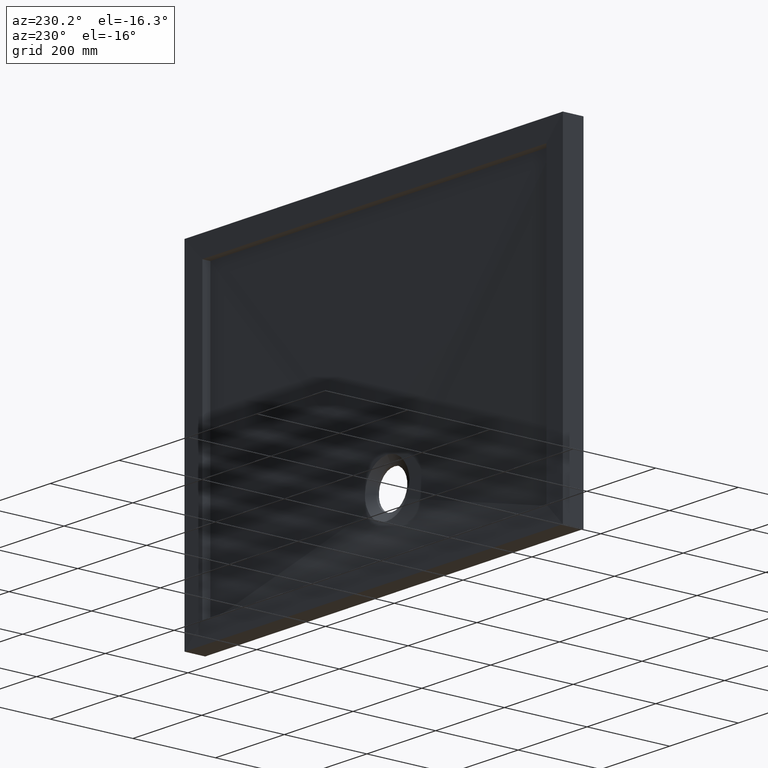
[diagram: clean part render]
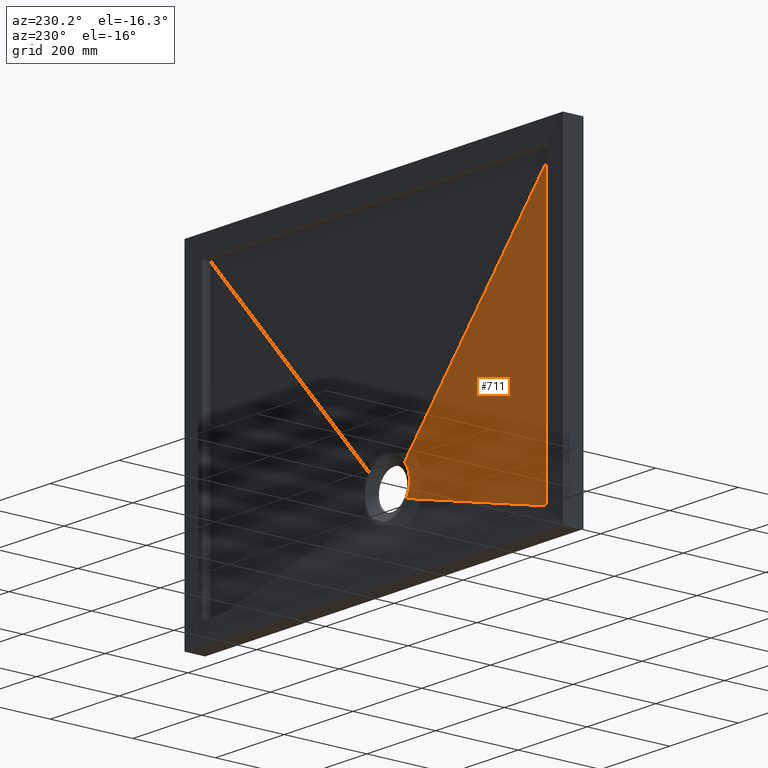
[diagram: same view with one face highlighted and labeled with its STEP entity id]
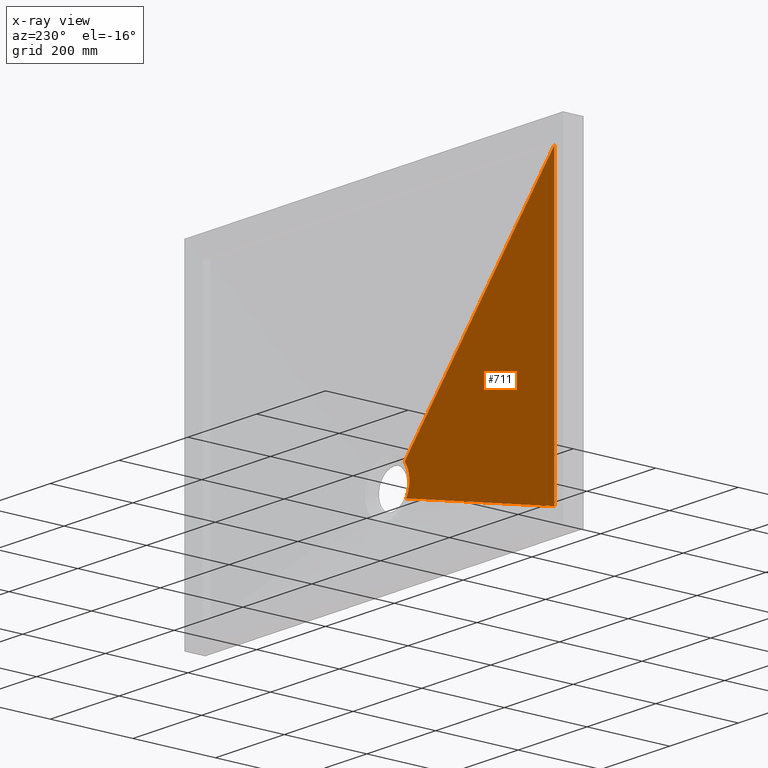
[diagram: x-ray of the same camera — body ghosted, the highlighted face saturated]
A machine part, auxiliary view. The second image highlights one B-rep face of the part: STEP entity #711.
The next image is the same camera in x-ray: the body ghosted, the highlighted face saturated — about 0% of this face is hidden behind the body in this view.
In plain terms, the highlighted face is a freeform B-spline surface patch.
Its self-contained STEP definition (entity closure, byte-faithful):
#8 = CARTESIAN_POINT ( 'NONE',  ( -59.21531781090852300, 17.29261846597233200, -174.2304335301227000 ) ) ;
#33 = CARTESIAN_POINT ( 'NONE',  ( -500.0000000000000000, 29.00000000000000000, -350.0000000000000000 ) ) ;
#35 = ORIENTED_EDGE ( 'NONE', *, *, #267, .T. ) ;
#38 = CARTESIAN_POINT ( 'NONE',  ( -500.0000000000000000, 28.99999999999991500, 350.0000000000001100 ) ) ;
#49 = VERTEX_POINT ( 'NONE', #262 ) ;
#53 = CARTESIAN_POINT ( 'NONE',  ( -500.0000000000000000, 29.00000000000000000, -350.0000000000000000 ) ) ;
#62 = CARTESIAN_POINT ( 'NONE',  ( -59.84731307925768800, 17.29821603857981300, -175.7093295538596700 ) ) ;
#80 = B_SPLINE_CURVE_WITH_KNOTS ( 'NONE', 3,
 ( #807, #372, #257, #53 ),
 .UNSPECIFIED., .F., .F.,
 ( 4, 4 ),
 ( 0.0000000000000000000, 1.000000000000000000 ),
 .UNSPECIFIED. ) ;
#91 = CARTESIAN_POINT ( 'NONE',  ( -500.0000000000000000, 29.00000000000000400, -145.8333333333339700 ) ) ;
#97 = CARTESIAN_POINT ( 'NONE',  ( -61.19294182446859100, 17.38558382166834400, -221.3166409475669500 ) ) ;
#114 = B_SPLINE_CURVE_WITH_KNOTS ( 'NONE', 3,
 ( #782, #940, #258, #97, #981, #922, #351, #631, #944, #332, #741, #933, #173, #892, #859, #200, #819, #222, #396, #62, #8, #151, #1018, #313, #831, #854 ),
 .UNSPECIFIED., .F., .F.,
 ( 4, 2, 2, 2, 2, 2, 2, 2, 2, 2, 2, 2, 4 ),
 ( 0.0000000000000000000, 0.009600364245515942800, 0.01920072849103188600, 0.02400091061378985600, 0.02880109273654783400, 0.03840145698206368800, 0.04080154804344261800, 0.04320163910482154000, 0.04800182122757940000, 0.05760218547309518800, 0.06240236759585308200, 0.06720254971861097700, 0.07680291396412677900 ),
 .UNSPECIFIED. ) ;
#118 = VERTEX_POINT ( 'NONE', #38 ) ;
#151 = CARTESIAN_POINT ( 'NONE',  ( -57.83474190761932500, 17.28140073573933200, -171.3092577803479300 ) ) ;
#173 = CARTESIAN_POINT ( 'NONE',  ( -64.43437236591164200, 17.35896006955111700, -194.3761037133583000 ) ) ;
#193 = ORIENTED_EDGE ( 'NONE', *, *, #1037, .F. ) ;
#200 = CARTESIAN_POINT ( 'NONE',  ( -63.82288352168742300, 17.34564737359868400, -189.5572170711315000 ) ) ;
#213 = EDGE_LOOP ( 'NONE', ( #193, #35, #936, #837 ) ) ;
#222 = CARTESIAN_POINT ( 'NONE',  ( -62.49452280413208900, 17.32566654715793000, -183.2648572593388100 ) ) ;
#257 = CARTESIAN_POINT ( 'NONE',  ( -500.0000000000000000, 28.99999999999991500, -116.6666666666666400 ) ) ;
#258 = CARTESIAN_POINT ( 'NONE',  ( -58.77831363838173900, 17.37757322068365400, -227.2449882993596200 ) ) ;
#262 = CARTESIAN_POINT ( 'NONE',  ( -55.68490230141027600, 17.36412464260612900, -232.9106875675516300 ) ) ;
#267 = EDGE_CURVE ( 'NONE', #49, #960, #689, .T. ) ;
#268 = B_SPLINE_SURFACE_WITH_KNOTS ( 'NONE', 3, 1, ( 
 ( #776, #698 ),
 ( #675, #622 ),
 ( #662, #738 ),
 ( #531, #798 ),
 ( #788, #811 ),
 ( #812, #608 ),
 ( #604, #594 ),
 ( #486, #529 ),
 ( #503, #510 ),
 ( #528, #583 ),
 ( #576, #575 ),
 ( #572, #559 ),
 ( #91, #337 ),
 ( #978, #569 ),
 ( #571, #527 ),
 ( #753, #566 ),
 ( #562, #560 ),
 ( #556, #554 ) ),
 .UNSPECIFIED., .F., .F., .F.,
 ( 4, 2, 2, 2, 2, 2, 2, 2, 4 ),
 ( 2, 2 ),
 ( 0.0000000000000000000, 0.1250000000000000000, 0.2500000000000000000, 0.3750000000000000000, 0.5000000000000000000, 0.6250000000000000000, 0.7500000000000000000, 0.8750000000000000000, 1.000000000000000000 ),
 ( 0.0000000000000000000, 1.000000000000000000 ),
 .UNSPECIFIED. ) ;
#313 = CARTESIAN_POINT ( 'NONE',  ( -54.68778998315712400, 17.25918541154275600, -165.6466839498065700 ) ) ;
#322 = CARTESIAN_POINT ( 'NONE',  ( -270.8904139732355800, 23.00000000000000000, -289.6232897812648700 ) ) ;
#332 = CARTESIAN_POINT ( 'NONE',  ( -64.74042599346458400, 17.37681902708269600, -202.3902420093279500 ) ) ;
#337 = CARTESIAN_POINT ( 'NONE',  ( -49.33176274626610100, 17.00000000000000000, -213.1989581409061700 ) ) ;
#351 = CARTESIAN_POINT ( 'NONE',  ( -63.62858149040349800, 17.38698584293970500, -211.9604408566551700 ) ) ;
#372 = CARTESIAN_POINT ( 'NONE',  ( -500.0000000000000000, 28.99999999999991500, 116.6666666666667600 ) ) ;
#396 = CARTESIAN_POINT ( 'NONE',  ( -61.57207882330573800, 17.31483812696561800, -180.1997936726896500 ) ) ;
#403 = DIRECTION ( 'NONE',  ( 0.6604934469873172700, -0.01729722771818440300, -0.7506325415275287800 ) ) ;
#439 = LINE ( 'NONE', #871, #709 ) ;
#450 = DIRECTION ( 'NONE',  ( -0.9666765704192132900, 0.02531565580952043600, -0.2547460024681087500 ) ) ;
#486 = CARTESIAN_POINT ( 'NONE',  ( -500.0000000000000000, 29.00000000000000400, 58.33333333333261100 ) ) ;
#503 = CARTESIAN_POINT ( 'NONE',  ( -500.0000000000000000, 29.00000000000000400, 29.16666666666591800 ) ) ;
#510 = CARTESIAN_POINT ( 'NONE',  ( -51.00000000000018500, 17.00000000000000000, -197.3206110380376100 ) ) ;
#527 = CARTESIAN_POINT ( 'NONE',  ( -46.73704076797305600, 17.00000000000000400, -220.5691083685937000 ) ) ;
#528 = CARTESIAN_POINT ( 'NONE',  ( -500.0000000000000000, 29.00000000000000400, -29.16666666666741700 ) ) ;
#529 = CARTESIAN_POINT ( 'NONE',  ( -50.78756212604044200, 17.00000000000000400, -194.6414262102023300 ) ) ;
#531 = CARTESIAN_POINT ( 'NONE',  ( -500.0000000000000000, 29.00000000000000000, 233.3333333333329400 ) ) ;
#554 = CARTESIAN_POINT ( 'NONE',  ( -41.78082794647119200, 17.00000000000000000, -229.2465795625298000 ) ) ;
#556 = CARTESIAN_POINT ( 'NONE',  ( -500.0000000000000000, 29.00000000000000000, -350.0000000000000000 ) ) ;
#559 = CARTESIAN_POINT ( 'NONE',  ( -49.95335274167531700, 17.00000000000000400, -210.6185370759290300 ) ) ;
#560 = CARTESIAN_POINT ( 'NONE',  ( -43.17847895318260500, 17.00000000000000400, -227.2499352672278100 ) ) ;
#562 = CARTESIAN_POINT ( 'NONE',  ( -500.0000000000000000, 29.00000000000000400, -320.8333333333334800 ) ) ;
#566 = CARTESIAN_POINT ( 'NONE',  ( -44.46438235875852700, 17.00000000000000400, -225.1069293279813300 ) ) ;
#569 = CARTESIAN_POINT ( 'NONE',  ( -47.72345412055689500, 17.00000000000000000, -218.1743566175636900 ) ) ;
#571 = CARTESIAN_POINT ( 'NONE',  ( -500.0000000000000000, 29.00000000000000400, -233.3333333333337700 ) ) ;
#572 = CARTESIAN_POINT ( 'NONE',  ( -500.0000000000000000, 29.00000000000000400, -116.6666666666673500 ) ) ;
#575 = CARTESIAN_POINT ( 'NONE',  ( -50.78756212604042700, 17.00000000000000000, -205.3585737897976500 ) ) ;
#576 = CARTESIAN_POINT ( 'NONE',  ( -500.0000000000000000, 29.00000000000000400, -58.33333333333406800 ) ) ;
#583 = CARTESIAN_POINT ( 'NONE',  ( -51.00000000000018500, 17.00000000000000400, -202.6793889619622500 ) ) ;
#585 = FACE_OUTER_BOUND ( 'NONE', #213, .T. ) ;
#594 = CARTESIAN_POINT ( 'NONE',  ( -49.95335274167533200, 17.00000000000000000, -189.3814629240709200 ) ) ;
#603 = EDGE_CURVE ( 'NONE', #118, #960, #80, .T. ) ;
#604 = CARTESIAN_POINT ( 'NONE',  ( -500.0000000000000000, 29.00000000000000400, 116.6666666666660300 ) ) ;
#608 = CARTESIAN_POINT ( 'NONE',  ( -49.33176274626608700, 16.99999999999999600, -186.8010418590937400 ) ) ;
#622 = CARTESIAN_POINT ( 'NONE',  ( -43.17847895318262600, 16.99999999999999600, -172.7500647327721900 ) ) ;
#631 = CARTESIAN_POINT ( 'NONE',  ( -64.14168874278931300, 17.38478344281913800, -208.7748797909528400 ) ) ;
#662 = CARTESIAN_POINT ( 'NONE',  ( -500.0000000000000000, 29.00000000000000000, 291.6666666666665200 ) ) ;
#667 = CARTESIAN_POINT ( 'NONE',  ( -50.87906680573855300, 17.23826778312640000, -160.4135235172096000 ) ) ;
#675 = CARTESIAN_POINT ( 'NONE',  ( -500.0000000000000000, 29.00000000000000000, 320.8333333333333100 ) ) ;
#689 = LINE ( 'NONE', #322, #742 ) ;
#698 = CARTESIAN_POINT ( 'NONE',  ( -41.78082794647121300, 17.00000000000000000, -170.7534204374701100 ) ) ;
#707 = VERTEX_POINT ( 'NONE', #667 ) ;
#709 = VECTOR ( 'NONE', #403, 1000.000000000000000 ) ;
#711 = ADVANCED_FACE ( 'NONE', ( #585 ), #268, .F. ) ;
#738 = CARTESIAN_POINT ( 'NONE',  ( -44.46438235875852700, 17.00000000000000700, -174.8930706720186900 ) ) ;
#741 = CARTESIAN_POINT ( 'NONE',  ( -64.76935871674517400, 17.37066375178517000, -199.1893725495010900 ) ) ;
#742 = VECTOR ( 'NONE', #450, 1000.000000000000100 ) ;
#753 = CARTESIAN_POINT ( 'NONE',  ( -500.0000000000000000, 29.00000000000000400, -291.6666666666669700 ) ) ;
#776 = CARTESIAN_POINT ( 'NONE',  ( -500.0000000000000000, 29.00000000000000000, 350.0000000000001100 ) ) ;
#782 = CARTESIAN_POINT ( 'NONE',  ( -55.68490230141027600, 17.36412464260612900, -232.9106875675516300 ) ) ;
#788 = CARTESIAN_POINT ( 'NONE',  ( -500.0000000000000000, 29.00000000000000400, 204.1666666666662300 ) ) ;
#798 = CARTESIAN_POINT ( 'NONE',  ( -46.73704076797306300, 17.00000000000000400, -179.4308916314062700 ) ) ;
#807 = CARTESIAN_POINT ( 'NONE',  ( -500.0000000000000000, 28.99999999999991500, 350.0000000000001100 ) ) ;
#811 = CARTESIAN_POINT ( 'NONE',  ( -47.72345412055690200, 16.99999999999999600, -181.8256433824362300 ) ) ;
#812 = CARTESIAN_POINT ( 'NONE',  ( -500.0000000000000000, 29.00000000000000400, 145.8333333333327500 ) ) ;
#819 = CARTESIAN_POINT ( 'NONE',  ( -63.53400166327874400, 17.34079781773088800, -187.9705560824910700 ) ) ;
#831 = CARTESIAN_POINT ( 'NONE',  ( -52.88617314725377800, 17.24847857352640500, -162.9643843027251400 ) ) ;
#837 = ORIENTED_EDGE ( 'NONE', *, *, #951, .T. ) ;
#854 = CARTESIAN_POINT ( 'NONE',  ( -50.87906680573855300, 17.23826778312640000, -160.4135235172096000 ) ) ;
#859 = CARTESIAN_POINT ( 'NONE',  ( -64.16711651064095200, 17.35250987938683300, -191.9651906070110400 ) ) ;
#871 = CARTESIAN_POINT ( 'NONE',  ( -270.8904139732355800, 23.00000000000000000, 89.62328978126498700 ) ) ;
#892 = CARTESIAN_POINT ( 'NONE',  ( -64.26657517663413400, 17.35472125382163700, -192.7699057136004500 ) ) ;
#922 = CARTESIAN_POINT ( 'NONE',  ( -63.30867987284667500, 17.38755890966588400, -213.5569745759410400 ) ) ;
#933 = CARTESIAN_POINT ( 'NONE',  ( -64.50287704720693700, 17.36099147630556100, -195.1787159326172500 ) ) ;
#936 = ORIENTED_EDGE ( 'NONE', *, *, #603, .F. ) ;
#940 = CARTESIAN_POINT ( 'NONE',  ( -57.34773657140831900, 17.37164520121036700, -230.1227725338198700 ) ) ;
#944 = CARTESIAN_POINT ( 'NONE',  ( -64.33661410838288900, 17.38315598835282200, -207.1801507646903500 ) ) ;
#951 = EDGE_CURVE ( 'NONE', #118, #707, #439, .T. ) ;
#960 = VERTEX_POINT ( 'NONE', #33 ) ;
#978 = CARTESIAN_POINT ( 'NONE',  ( -500.0000000000000000, 29.00000000000000400, -204.1666666666672000 ) ) ;
#981 = CARTESIAN_POINT ( 'NONE',  ( -62.17696310198898100, 17.38766878607856700, -218.2660662863660000 ) ) ;
#1018 = CARTESIAN_POINT ( 'NONE',  ( -57.08480332839017300, 17.27577074980721500, -169.8654872709166700 ) ) ;
#1037 = EDGE_CURVE ( 'NONE', #49, #707, #114, .T. ) ;